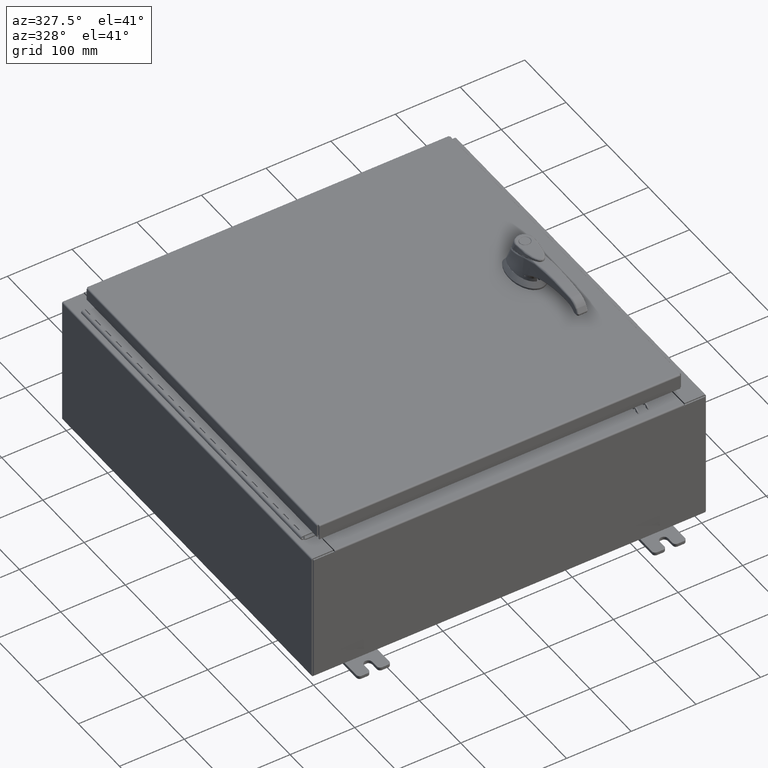
[diagram: clean part render]
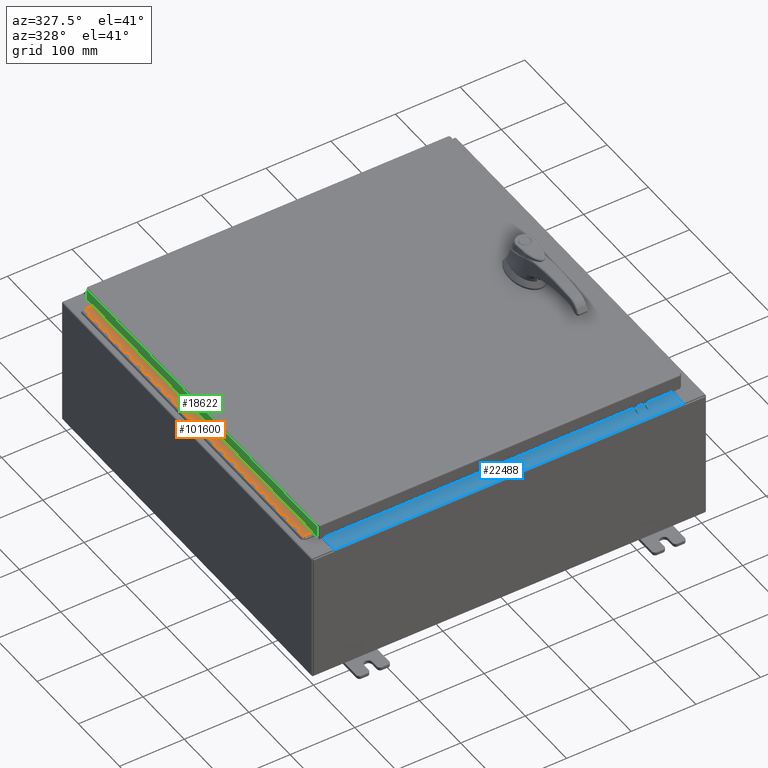
[diagram: same view with three faces highlighted in distinct colors, each labeled with its STEP entity id]
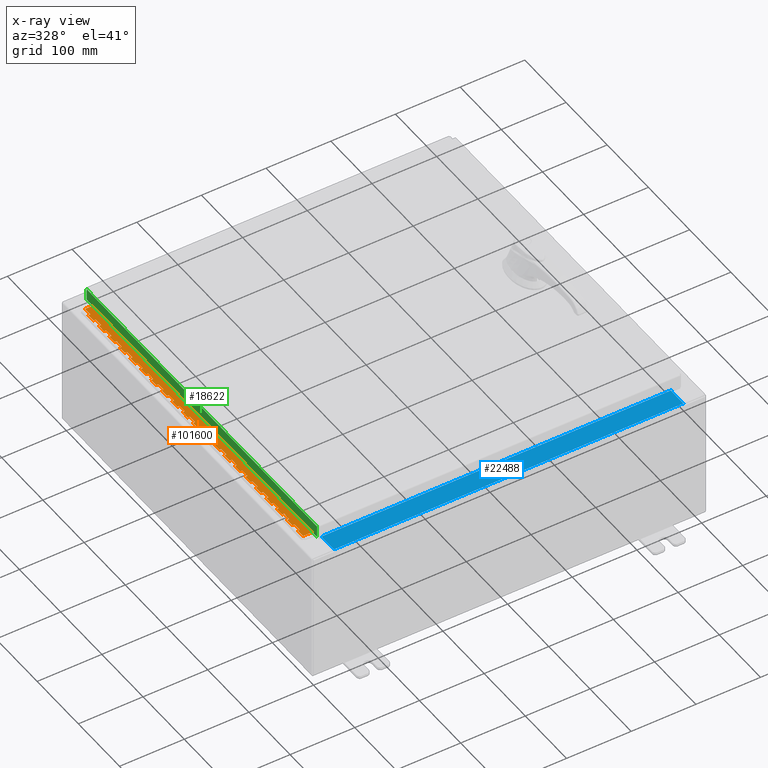
[diagram: x-ray of the same camera — body ghosted, the three highlighted faces saturated]
A machine part, auxiliary view with three faces highlighted in distinct colors.
The next image is the same camera in x-ray (body ghosted, the three faces saturated) — at least one of them is partly hidden behind the body in this view.
Their STEP definitions:

[orange] entity #101600 — the highlighted planar face has unit normal (-0, -0, 1).
#120 = VECTOR ( 'NONE', #27151, 39.37007874015748100 ) ;
#170 = CARTESIAN_POINT ( 'NONE',  ( -0.6869999999999973900, 0.8004999999999995500, -11.50000000000000000 ) ) ;
#180 = DIRECTION ( 'NONE',  ( -3.389037039080723100E-015, -1.000000000000000000, 0.0000000000000000000 ) ) ;
#307 = VERTEX_POINT ( 'NONE', #33217 ) ;
#618 = LINE ( 'NONE', #94288, #111666 ) ;
#1006 = VERTEX_POINT ( 'NONE', #9040 ) ;
#1140 = LINE ( 'NONE', #74490, #91634 ) ;
#1196 = ORIENTED_EDGE ( 'NONE', *, *, #69363, .F. ) ;
#1357 = EDGE_CURVE ( 'NONE', #11441, #54437, #4801, .T. ) ;
#1646 = CARTESIAN_POINT ( 'NONE',  ( -0.6869999999999978300, 0.6754999999999996600, -2.999999999999999600 ) ) ;
#1653 = VERTEX_POINT ( 'NONE', #46923 ) ;
#1743 = CARTESIAN_POINT ( 'NONE',  ( -0.6870000000000022800, -0.6245000000000003900, 0.0000000000000000000 ) ) ;
#1844 = VERTEX_POINT ( 'NONE', #83343 ) ;
#2031 = CARTESIAN_POINT ( 'NONE',  ( -0.6869999999999973900, 0.8004999999999995500, -18.50000000000000000 ) ) ;
#2469 = VERTEX_POINT ( 'NONE', #107846 ) ;
#2493 = CARTESIAN_POINT ( 'NONE',  ( -0.6869999999999978300, 0.6754999999999996600, -3.500000000000000000 ) ) ;
#2861 = CARTESIAN_POINT ( 'NONE',  ( -0.6869999999999982800, 0.5504999999999997700, -0.5000000000000000000 ) ) ;
#3249 = EDGE_CURVE ( 'NONE', #66567, #33838, #85735, .T. ) ;
#3370 = VERTEX_POINT ( 'NONE', #79332 ) ;
#3786 = VERTEX_POINT ( 'NONE', #113231 ) ;
#3861 = VERTEX_POINT ( 'NONE', #28844 ) ;
#3927 = CARTESIAN_POINT ( 'NONE',  ( -0.6869999999999978300, 0.6754999999999996600, -14.49999999999999800 ) ) ;
#4357 = LINE ( 'NONE', #37881, #27726 ) ;
#4422 = EDGE_CURVE ( 'NONE', #97464, #53398, #48510, .T. ) ;
#4689 = EDGE_CURVE ( 'NONE', #82828, #89474, #60870, .T. ) ;
#4801 = LINE ( 'NONE', #109983, #28183 ) ;
#5056 = LINE ( 'NONE', #11542, #75020 ) ;
#5363 = EDGE_CURVE ( 'NONE', #96682, #3861, #40167, .T. ) ;
#5679 = CARTESIAN_POINT ( 'NONE',  ( -0.6869999999999978300, 0.6754999999999996600, -21.00000000000000000 ) ) ;
#5978 = LINE ( 'NONE', #38737, #73198 ) ;
#6099 = VECTOR ( 'NONE', #50265, 39.37007874015748100 ) ;
#6186 = ORIENTED_EDGE ( 'NONE', *, *, #97880, .F. ) ;
#6223 = CARTESIAN_POINT ( 'NONE',  ( -0.6869999999999982800, 0.5504999999999997700, -18.50000000000000000 ) ) ;
#6336 = ORIENTED_EDGE ( 'NONE', *, *, #98086, .F. ) ;
#6368 = VERTEX_POINT ( 'NONE', #13654 ) ;
#6405 = DIRECTION ( 'NONE',  ( 0.0000000000000000000, 0.0000000000000000000, 1.000000000000000000 ) ) ;
#6441 = DIRECTION ( 'NONE',  ( 0.0000000000000000000, -0.0000000000000000000, -1.000000000000000000 ) ) ;
#6771 = CARTESIAN_POINT ( 'NONE',  ( -0.6869999999999982800, 0.5504999999999997700, -19.50000000000000000 ) ) ;
#6994 = CARTESIAN_POINT ( 'NONE',  ( -0.6869999999999982800, 0.5504999999999997700, -15.50000000000000000 ) ) ;
#7305 = VERTEX_POINT ( 'NONE', #79966 ) ;
#7383 = CARTESIAN_POINT ( 'NONE',  ( -0.6869999999999973900, 0.8004999999999995500, -13.50000000000000000 ) ) ;
#7943 = VECTOR ( 'NONE', #8959, 39.37007874015748100 ) ;
#8090 = ORIENTED_EDGE ( 'NONE', *, *, #76887, .F. ) ;
#8199 = ORIENTED_EDGE ( 'NONE', *, *, #33458, .F. ) ;
#8200 = DIRECTION ( 'NONE',  ( 3.389037039080723100E-015, 1.000000000000000000, -0.0000000000000000000 ) ) ;
#8306 = LINE ( 'NONE', #18621, #52196 ) ;
#8850 = LINE ( 'NONE', #100359, #102068 ) ;
#8875 = EDGE_CURVE ( 'NONE', #61348, #82828, #76814, .T. ) ;
#8959 = DIRECTION ( 'NONE',  ( -3.389037039080723100E-015, -1.000000000000000000, 0.0000000000000000000 ) ) ;
#9040 = CARTESIAN_POINT ( 'NONE',  ( -0.6869999999999982800, 0.5504999999999997700, -8.000000000000000000 ) ) ;
#9276 = CARTESIAN_POINT ( 'NONE',  ( -0.6869999999999982800, 0.5504999999999997700, -9.000000000000000000 ) ) ;
#9296 = DIRECTION ( 'NONE',  ( 0.0000000000000000000, -0.0000000000000000000, -1.000000000000000000 ) ) ;
#9481 = VERTEX_POINT ( 'NONE', #19640 ) ;
#9540 = LINE ( 'NONE', #5679, #76691 ) ;
#9758 = CARTESIAN_POINT ( 'NONE',  ( -0.6869999999999982800, 0.5504999999999997700, -1.499999999999999800 ) ) ;
#9911 = VECTOR ( 'NONE', #58208, 39.37007874015748100 ) ;
#9949 = VECTOR ( 'NONE', #49520, 39.37007874015748100 ) ;
#10006 = DIRECTION ( 'NONE',  ( 3.389037039080723100E-015, 1.000000000000000000, -0.0000000000000000000 ) ) ;
#10042 = ORIENTED_EDGE ( 'NONE', *, *, #86358, .T. ) ;
#10224 = LINE ( 'NONE', #20951, #106233 ) ;
#10236 = EDGE_CURVE ( 'NONE', #100849, #17783, #62942, .T. ) ;
#10587 = CARTESIAN_POINT ( 'NONE',  ( -0.6869999999999982800, 0.5504999999999997700, -2.999999999999999600 ) ) ;
#10707 = EDGE_CURVE ( 'NONE', #1844, #95845, #82121, .T. ) ;
#10843 = VECTOR ( 'NONE', #86360, 39.37007874015748100 ) ;
#10896 = CARTESIAN_POINT ( 'NONE',  ( -0.6869999999999978300, 0.6754999999999996600, -13.50000000000000000 ) ) ;
#11197 = VECTOR ( 'NONE', #24562, 39.37007874015748100 ) ;
#11341 = PLANE ( 'NONE',  #105125 ) ;
#11441 = VERTEX_POINT ( 'NONE', #92201 ) ;
#11447 = VECTOR ( 'NONE', #23451, 39.37007874015748100 ) ;
#11492 = ORIENTED_EDGE ( 'NONE', *, *, #15502, .T. ) ;
#11542 = CARTESIAN_POINT ( 'NONE',  ( -0.6869999999999982800, 0.5504999999999997700, -5.500000000000000000 ) ) ;
#11704 = DIRECTION ( 'NONE',  ( 0.0000000000000000000, -0.0000000000000000000, -1.000000000000000000 ) ) ;
#11714 = CARTESIAN_POINT ( 'NONE',  ( -0.6870000000000022800, -0.6245000000000003900, -21.00000000000000000 ) ) ;
#12114 = VECTOR ( 'NONE', #94629, 39.37007874015748100 ) ;
#12589 = VERTEX_POINT ( 'NONE', #40969 ) ;
#12602 = CARTESIAN_POINT ( 'NONE',  ( -0.6869999999999982800, 0.5504999999999997700, -17.50000000000000000 ) ) ;
#12825 = EDGE_CURVE ( 'NONE', #27453, #7305, #18785, .T. ) ;
#12837 = ORIENTED_EDGE ( 'NONE', *, *, #92998, .F. ) ;
#12866 = LINE ( 'NONE', #61961, #36252 ) ;
#12907 = ORIENTED_EDGE ( 'NONE', *, *, #49012, .F. ) ;
#12928 = VERTEX_POINT ( 'NONE', #100175 ) ;
#13199 = EDGE_CURVE ( 'NONE', #33949, #20771, #31067, .T. ) ;
#13393 = LINE ( 'NONE', #70811, #57249 ) ;
#13446 = VECTOR ( 'NONE', #180, 39.37007874015748100 ) ;
#13607 = CARTESIAN_POINT ( 'NONE',  ( -0.6869999999999973900, 0.8004999999999995500, -19.50000000000000000 ) ) ;
#13654 = CARTESIAN_POINT ( 'NONE',  ( -0.6869999999999978300, 0.6754999999999996600, -1.499999999999999800 ) ) ;
#13943 = CARTESIAN_POINT ( 'NONE',  ( -0.6869999999999982800, 0.5504999999999997700, -8.500000000000000000 ) ) ;
#14333 = CARTESIAN_POINT ( 'NONE',  ( -0.6869999999999982800, 0.5504999999999997700, -10.50000000000000000 ) ) ;
#14553 = CARTESIAN_POINT ( 'NONE',  ( -0.6869999999999982800, 0.5504999999999997700, -8.500000000000000000 ) ) ;
#14612 = CARTESIAN_POINT ( 'NONE',  ( -0.6869999999999978300, 0.6754999999999996600, -21.00000000000000000 ) ) ;
#14738 = EDGE_CURVE ( 'NONE', #94481, #64956, #56458, .T. ) ;
#14833 = VECTOR ( 'NONE', #97558, 39.37007874015748100 ) ;
#14866 = VECTOR ( 'NONE', #82044, 39.37007874015748100 ) ;
#14942 = VERTEX_POINT ( 'NONE', #63937 ) ;
#14958 = LINE ( 'NONE', #34514, #102728 ) ;
#15342 = CARTESIAN_POINT ( 'NONE',  ( -0.6869999999999982800, 0.5504999999999997700, -5.000000000000000000 ) ) ;
#15502 = EDGE_CURVE ( 'NONE', #33949, #40504, #111289, .T. ) ;
#15565 = EDGE_CURVE ( 'NONE', #102285, #42895, #41321, .T. ) ;
#15626 = CARTESIAN_POINT ( 'NONE',  ( -0.6869999999999973900, 0.8004999999999995500, -10.50000000000000000 ) ) ;
#15740 = CARTESIAN_POINT ( 'NONE',  ( -0.6869999999999978300, 0.6754999999999996600, -21.00000000000000000 ) ) ;
#15803 = DIRECTION ( 'NONE',  ( -3.389037039080723100E-015, -1.000000000000000000, 0.0000000000000000000 ) ) ;
#16167 = CARTESIAN_POINT ( 'NONE',  ( -0.6869999999999982800, 0.5504999999999997700, -20.50000000000000400 ) ) ;
#16302 = VECTOR ( 'NONE', #34987, 39.37007874015748100 ) ;
#16376 = CARTESIAN_POINT ( 'NONE',  ( -0.6869999999999978300, 0.6754999999999996600, -21.00000000000000000 ) ) ;
#16427 = VECTOR ( 'NONE', #63329, 39.37007874015748100 ) ;
#16587 = DIRECTION ( 'NONE',  ( 0.0000000000000000000, 0.0000000000000000000, 1.000000000000000000 ) ) ;
#17042 = CARTESIAN_POINT ( 'NONE',  ( -0.6869999999999973900, 0.8004999999999995500, -2.000000000000000000 ) ) ;
#17093 = ORIENTED_EDGE ( 'NONE', *, *, #18775, .F. ) ;
#17450 = VECTOR ( 'NONE', #66267, 39.37007874015748100 ) ;
#17696 = CARTESIAN_POINT ( 'NONE',  ( -0.6869999999999973900, 0.8004999999999995500, -2.500000000000000000 ) ) ;
#17783 = VERTEX_POINT ( 'NONE', #80480 ) ;
#17852 = DIRECTION ( 'NONE',  ( 3.389037039080723100E-015, 1.000000000000000000, -0.0000000000000000000 ) ) ;
#17978 = ORIENTED_EDGE ( 'NONE', *, *, #80175, .F. ) ;
#18338 = DIRECTION ( 'NONE',  ( 3.389037039080723100E-015, 1.000000000000000000, -0.0000000000000000000 ) ) ;
#18444 = EDGE_CURVE ( 'NONE', #20771, #44139, #68640, .T. ) ;
#18583 = CARTESIAN_POINT ( 'NONE',  ( -0.6869999999999982800, 0.5504999999999997700, -16.50000000000000000 ) ) ;
#18621 = CARTESIAN_POINT ( 'NONE',  ( -0.6869999999999973900, 0.8004999999999995500, -9.500000000000000000 ) ) ;
#18764 = VERTEX_POINT ( 'NONE', #61426 ) ;
#18775 = EDGE_CURVE ( 'NONE', #93828, #9481, #67183, .T. ) ;
#18785 = LINE ( 'NONE', #17042, #88757 ) ;
#19153 = CARTESIAN_POINT ( 'NONE',  ( -0.6869999999999973900, 0.8004999999999995500, -16.00000000000000000 ) ) ;
#19411 = CARTESIAN_POINT ( 'NONE',  ( -0.6869999999999982800, 0.5504999999999997700, -3.500000000000000000 ) ) ;
#19541 = VECTOR ( 'NONE', #46421, 39.37007874015748100 ) ;
#19618 = ORIENTED_EDGE ( 'NONE', *, *, #22571, .T. ) ;
#19640 = CARTESIAN_POINT ( 'NONE',  ( -0.6869999999999982800, 0.5504999999999997700, -12.49999999999999800 ) ) ;
#19841 = DIRECTION ( 'NONE',  ( 0.0000000000000000000, 0.0000000000000000000, 1.000000000000000000 ) ) ;
#19851 = LINE ( 'NONE', #21198, #22549 ) ;
#19854 = VECTOR ( 'NONE', #9296, 39.37007874015748100 ) ;
#20134 = CARTESIAN_POINT ( 'NONE',  ( -0.6869999999999982800, 0.5504999999999997700, -9.500000000000000000 ) ) ;
#20167 = VECTOR ( 'NONE', #72565, 39.37007874015748100 ) ;
#20291 = ORIENTED_EDGE ( 'NONE', *, *, #99053, .F. ) ;
#20683 = CARTESIAN_POINT ( 'NONE',  ( -0.6869999999999973900, 0.8004999999999995500, -6.499999999999999100 ) ) ;
#20771 = VERTEX_POINT ( 'NONE', #19411 ) ;
#20819 = EDGE_CURVE ( 'NONE', #45237, #82488, #102603, .T. ) ;
#20951 = CARTESIAN_POINT ( 'NONE',  ( -0.6869999999999973900, 0.8004999999999995500, -5.000000000000000000 ) ) ;
#20984 = EDGE_CURVE ( 'NONE', #6368, #102851, #1140, .T. ) ;
#21198 = CARTESIAN_POINT ( 'NONE',  ( -0.6870000000000022800, -0.6245000000000003900, -21.00000000000000000 ) ) ;
#21437 = EDGE_CURVE ( 'NONE', #56977, #3370, #28502, .T. ) ;
#21880 = LINE ( 'NONE', #2031, #16427 ) ;
#22114 = EDGE_CURVE ( 'NONE', #83828, #96064, #39386, .T. ) ;
#22549 = VECTOR ( 'NONE', #82578, 39.37007874015748100 ) ;
#22571 = EDGE_CURVE ( 'NONE', #58668, #68123, #32490, .T. ) ;
#22663 = CARTESIAN_POINT ( 'NONE',  ( -0.6869999999999978300, 0.6754999999999996600, -21.00000000000000000 ) ) ;
#22682 = CARTESIAN_POINT ( 'NONE',  ( -0.6869999999999982800, 0.5504999999999997700, -21.00000000000000000 ) ) ;
#22732 = LINE ( 'NONE', #113489, #110530 ) ;
#23177 = VERTEX_POINT ( 'NONE', #50981 ) ;
#23209 = VERTEX_POINT ( 'NONE', #42906 ) ;
#23451 = DIRECTION ( 'NONE',  ( 0.0000000000000000000, 0.0000000000000000000, 1.000000000000000000 ) ) ;
#23458 = CARTESIAN_POINT ( 'NONE',  ( -0.6869999999999982800, 0.5504999999999997700, -14.00000000000000000 ) ) ;
#23758 = ORIENTED_EDGE ( 'NONE', *, *, #74029, .F. ) ;
#23807 = CARTESIAN_POINT ( 'NONE',  ( -0.6869999999999973900, 0.8004999999999995500, -4.500000000000000000 ) ) ;
#23872 = CARTESIAN_POINT ( 'NONE',  ( -0.6869999999999982800, 0.5504999999999997700, -13.50000000000000000 ) ) ;
#24418 = LINE ( 'NONE', #73544, #112216 ) ;
#24523 = VERTEX_POINT ( 'NONE', #75845 ) ;
#24562 = DIRECTION ( 'NONE',  ( 0.0000000000000000000, 0.0000000000000000000, 1.000000000000000000 ) ) ;
#24813 = CARTESIAN_POINT ( 'NONE',  ( -0.6869999999999982800, 0.5504999999999997700, -1.499999999999999800 ) ) ;
#25180 = DIRECTION ( 'NONE',  ( 0.0000000000000000000, 0.0000000000000000000, 1.000000000000000000 ) ) ;
#25200 = ORIENTED_EDGE ( 'NONE', *, *, #62229, .F. ) ;
#25301 = EDGE_CURVE ( 'NONE', #9481, #83828, #107564, .T. ) ;
#25539 = CARTESIAN_POINT ( 'NONE',  ( -0.6869999999999973900, 0.8004999999999995500, -1.000000000000000000 ) ) ;
#25583 = LINE ( 'NONE', #1743, #98282 ) ;
#26101 = VERTEX_POINT ( 'NONE', #35861 ) ;
#26286 = VECTOR ( 'NONE', #25180, 39.37007874015748100 ) ;
#26548 = EDGE_CURVE ( 'NONE', #33838, #40504, #88299, .T. ) ;
#27100 = VECTOR ( 'NONE', #68500, 39.37007874015748100 ) ;
#27151 = DIRECTION ( 'NONE',  ( 0.0000000000000000000, 0.0000000000000000000, 1.000000000000000000 ) ) ;
#27330 = ORIENTED_EDGE ( 'NONE', *, *, #21437, .F. ) ;
#27348 = CARTESIAN_POINT ( 'NONE',  ( -0.6869999999999982800, 0.5504999999999997700, -2.000000000000000000 ) ) ;
#27375 = DIRECTION ( 'NONE',  ( -3.389037039080723100E-015, -1.000000000000000000, 0.0000000000000000000 ) ) ;
#27431 = DIRECTION ( 'NONE',  ( -3.389037039080723100E-015, -1.000000000000000000, 0.0000000000000000000 ) ) ;
#27453 = VERTEX_POINT ( 'NONE', #27348 ) ;
#27496 = LINE ( 'NONE', #22663, #48027 ) ;
#27532 = VERTEX_POINT ( 'NONE', #28086 ) ;
#27536 = DIRECTION ( 'NONE',  ( 3.389037039080723100E-015, 1.000000000000000000, -0.0000000000000000000 ) ) ;
#27726 = VECTOR ( 'NONE', #99168, 39.37007874015748100 ) ;
#28086 = CARTESIAN_POINT ( 'NONE',  ( -0.6869999999999978300, 0.6754999999999996600, -16.00000000000000000 ) ) ;
#28183 = VECTOR ( 'NONE', #80058, 39.37007874015748100 ) ;
#28502 = LINE ( 'NONE', #170, #7943 ) ;
#28656 = CARTESIAN_POINT ( 'NONE',  ( -0.6869999999999978300, 0.6754999999999996600, -21.00000000000000000 ) ) ;
#28762 = ORIENTED_EDGE ( 'NONE', *, *, #36498, .F. ) ;
#28844 = CARTESIAN_POINT ( 'NONE',  ( -0.6869999999999978300, 0.6754999999999996600, -11.00000000000000000 ) ) ;
#28864 = ORIENTED_EDGE ( 'NONE', *, *, #22114, .F. ) ;
#29434 = LINE ( 'NONE', #25539, #78850 ) ;
#29577 = EDGE_CURVE ( 'NONE', #58668, #45237, #92867, .T. ) ;
#29898 = DIRECTION ( 'NONE',  ( -3.389037039080723100E-015, -1.000000000000000000, 0.0000000000000000000 ) ) ;
#30059 = VERTEX_POINT ( 'NONE', #105831 ) ;
#30228 = DIRECTION ( 'NONE',  ( 0.0000000000000000000, 0.0000000000000000000, 1.000000000000000000 ) ) ;
#30792 = CARTESIAN_POINT ( 'NONE',  ( -0.6869999999999982800, 0.5504999999999997700, -2.500000000000000000 ) ) ;
#30939 = ORIENTED_EDGE ( 'NONE', *, *, #13199, .F. ) ;
#31067 = LINE ( 'NONE', #68315, #48869 ) ;
#31295 = VECTOR ( 'NONE', #101866, 39.37007874015748100 ) ;
#31765 = LINE ( 'NONE', #15740, #11197 ) ;
#31859 = VERTEX_POINT ( 'NONE', #60538 ) ;
#32433 = CARTESIAN_POINT ( 'NONE',  ( -0.6869999999999982800, 0.5504999999999997700, -9.500000000000000000 ) ) ;
#32469 = EDGE_CURVE ( 'NONE', #82488, #102851, #29434, .T. ) ;
#32490 = LINE ( 'NONE', #33659, #105172 ) ;
#32526 = ORIENTED_EDGE ( 'NONE', *, *, #70454, .F. ) ;
#32543 = ORIENTED_EDGE ( 'NONE', *, *, #57870, .F. ) ;
#33217 = CARTESIAN_POINT ( 'NONE',  ( -0.6869999999999998300, 0.07549999999999991400, 0.0000000000000000000 ) ) ;
#33458 = EDGE_CURVE ( 'NONE', #40155, #24523, #51152, .T. ) ;
#33493 = LINE ( 'NONE', #91551, #36240 ) ;
#33659 = CARTESIAN_POINT ( 'NONE',  ( -0.6869999999999978300, 0.6754999999999996600, -21.00000000000000000 ) ) ;
#33838 = VERTEX_POINT ( 'NONE', #10587 ) ;
#33949 = VERTEX_POINT ( 'NONE', #2493 ) ;
#34439 = EDGE_CURVE ( 'NONE', #30059, #112996, #4357, .T. ) ;
#34514 = CARTESIAN_POINT ( 'NONE',  ( -0.6869999999999973900, 0.8004999999999995500, -20.50000000000000400 ) ) ;
#34740 = VECTOR ( 'NONE', #40764, 39.37007874015748100 ) ;
#34987 = DIRECTION ( 'NONE',  ( 0.0000000000000000000, -0.0000000000000000000, -1.000000000000000000 ) ) ;
#35209 = ORIENTED_EDGE ( 'NONE', *, *, #48298, .F. ) ;
#35274 = CARTESIAN_POINT ( 'NONE',  ( -0.6869999999999982800, 0.5504999999999997700, -2.500000000000000000 ) ) ;
#35303 = FACE_OUTER_BOUND ( 'NONE', #51970, .T. ) ;
#35400 = ORIENTED_EDGE ( 'NONE', *, *, #95560, .T. ) ;
#35493 = VECTOR ( 'NONE', #11704, 39.37007874015748100 ) ;
#35762 = CARTESIAN_POINT ( 'NONE',  ( -0.6869999999999982800, 0.5504999999999997700, -16.50000000000000000 ) ) ;
#35861 = CARTESIAN_POINT ( 'NONE',  ( -0.6869999999999982800, 0.5504999999999997700, -17.00000000000000000 ) ) ;
#36134 = VERTEX_POINT ( 'NONE', #51758 ) ;
#36136 = VERTEX_POINT ( 'NONE', #86675 ) ;
#36176 = CARTESIAN_POINT ( 'NONE',  ( -0.6869999999999978300, 0.6754999999999996600, -10.00000000000000000 ) ) ;
#36240 = VECTOR ( 'NONE', #30228, 39.37007874015748100 ) ;
#36252 = VECTOR ( 'NONE', #79643, 39.37007874015748100 ) ;
#36353 = LINE ( 'NONE', #111457, #56819 ) ;
#36436 = VERTEX_POINT ( 'NONE', #54846 ) ;
#36441 = ORIENTED_EDGE ( 'NONE', *, *, #53855, .F. ) ;
#36498 = EDGE_CURVE ( 'NONE', #45158, #67743, #89262, .T. ) ;
#36555 = ORIENTED_EDGE ( 'NONE', *, *, #99181, .F. ) ;
#36556 = CARTESIAN_POINT ( 'NONE',  ( -0.6869999999999978300, 0.6754999999999996600, -12.49999999999999800 ) ) ;
#37020 = VECTOR ( 'NONE', #6441, 39.37007874015748100 ) ;
#37038 = CARTESIAN_POINT ( 'NONE',  ( -0.6869999999999982800, 0.5504999999999997700, -3.500000000000000000 ) ) ;
#37532 = LINE ( 'NONE', #14612, #11447 ) ;
#37881 = CARTESIAN_POINT ( 'NONE',  ( -0.6869999999999982800, 0.5504999999999997700, -14.49999999999999800 ) ) ;
#37903 = DIRECTION ( 'NONE',  ( 3.389037039080723100E-015, 1.000000000000000000, -0.0000000000000000000 ) ) ;
#37991 = LINE ( 'NONE', #58542, #61305 ) ;
#38302 = ORIENTED_EDGE ( 'NONE', *, *, #68829, .F. ) ;
#38393 = ORIENTED_EDGE ( 'NONE', *, *, #51066, .T. ) ;
#38660 = EDGE_CURVE ( 'NONE', #112453, #36134, #21880, .T. ) ;
#38737 = CARTESIAN_POINT ( 'NONE',  ( -0.6869999999999973900, 0.8004999999999995500, -4.000000000000000000 ) ) ;
#38757 = VECTOR ( 'NONE', #74933, 39.37007874015748100 ) ;
#38818 = LINE ( 'NONE', #48295, #85476 ) ;
#39343 = ORIENTED_EDGE ( 'NONE', *, *, #55986, .T. ) ;
#39369 = ORIENTED_EDGE ( 'NONE', *, *, #58008, .F. ) ;
#39386 = LINE ( 'NONE', #93557, #57153 ) ;
#39522 = LINE ( 'NONE', #7383, #42259 ) ;
#39612 = LINE ( 'NONE', #78660, #16302 ) ;
#39659 = DIRECTION ( 'NONE',  ( 0.0000000000000000000, 0.0000000000000000000, 1.000000000000000000 ) ) ;
#39702 = EDGE_CURVE ( 'NONE', #62582, #104275, #101329, .T. ) ;
#39775 = EDGE_CURVE ( 'NONE', #95845, #51859, #60203, .T. ) ;
#40155 = VERTEX_POINT ( 'NONE', #98032 ) ;
#40167 = LINE ( 'NONE', #87190, #84069 ) ;
#40504 = VERTEX_POINT ( 'NONE', #1646 ) ;
#40764 = DIRECTION ( 'NONE',  ( 0.0000000000000000000, -0.0000000000000000000, -1.000000000000000000 ) ) ;
#40944 = ORIENTED_EDGE ( 'NONE', *, *, #61036, .F. ) ;
#40969 = CARTESIAN_POINT ( 'NONE',  ( -0.6869999999999978300, 0.6754999999999996600, -7.499999999999999100 ) ) ;
#41321 = LINE ( 'NONE', #16376, #61904 ) ;
#41500 = DIRECTION ( 'NONE',  ( -3.389037039080723100E-015, -1.000000000000000000, 0.0000000000000000000 ) ) ;
#41573 = VECTOR ( 'NONE', #27375, 39.37007874015748100 ) ;
#41742 = DIRECTION ( 'NONE',  ( 0.0000000000000000000, 0.0000000000000000000, 1.000000000000000000 ) ) ;
#42237 = CARTESIAN_POINT ( 'NONE',  ( -0.6869999999999973900, 0.8004999999999995500, -10.00000000000000000 ) ) ;
#42259 = VECTOR ( 'NONE', #59881, 39.37007874015748100 ) ;
#42598 = DIRECTION ( 'NONE',  ( 3.389037039080723100E-015, 1.000000000000000000, -0.0000000000000000000 ) ) ;
#42883 = CARTESIAN_POINT ( 'NONE',  ( -0.6869999999999982800, 0.5504999999999997700, -7.000000000000000000 ) ) ;
#42895 = VERTEX_POINT ( 'NONE', #89740 ) ;
#42906 = CARTESIAN_POINT ( 'NONE',  ( -0.6869999999999982800, 0.5504999999999997700, -4.500000000000000000 ) ) ;
#42911 = LINE ( 'NONE', #6223, #34740 ) ;
#43387 = ORIENTED_EDGE ( 'NONE', *, *, #34439, .F. ) ;
#43393 = VECTOR ( 'NONE', #46934, 39.37007874015748100 ) ;
#43906 = CARTESIAN_POINT ( 'NONE',  ( -0.6869999999999973900, 0.8004999999999995500, -11.99999999999999800 ) ) ;
#43954 = VECTOR ( 'NONE', #108901, 39.37007874015748100 ) ;
#44139 = VERTEX_POINT ( 'NONE', #92825 ) ;
#44245 = ORIENTED_EDGE ( 'NONE', *, *, #81758, .F. ) ;
#44438 = ORIENTED_EDGE ( 'NONE', *, *, #26548, .F. ) ;
#44532 = EDGE_CURVE ( 'NONE', #3370, #36436, #89831, .T. ) ;
#44550 = CARTESIAN_POINT ( 'NONE',  ( -0.6869999999999982800, 0.5504999999999997700, -11.50000000000000000 ) ) ;
#44768 = ORIENTED_EDGE ( 'NONE', *, *, #90817, .F. ) ;
#44864 = ORIENTED_EDGE ( 'NONE', *, *, #61566, .F. ) ;
#44951 = ORIENTED_EDGE ( 'NONE', *, *, #15565, .T. ) ;
#45158 = VERTEX_POINT ( 'NONE', #32433 ) ;
#45237 = VERTEX_POINT ( 'NONE', #59580 ) ;
#45500 = VECTOR ( 'NONE', #51586, 39.37007874015748100 ) ;
#46276 = VERTEX_POINT ( 'NONE', #23458 ) ;
#46421 = DIRECTION ( 'NONE',  ( 3.389037039080723100E-015, 1.000000000000000000, -0.0000000000000000000 ) ) ;
#46591 = CARTESIAN_POINT ( 'NONE',  ( -0.6869999999999973900, 0.8004999999999995500, -17.50000000000000000 ) ) ;
#46655 = CARTESIAN_POINT ( 'NONE',  ( -0.6869999999999978300, 0.6754999999999996600, 0.0000000000000000000 ) ) ;
#46889 = VECTOR ( 'NONE', #66448, 39.37007874015748100 ) ;
#46923 = CARTESIAN_POINT ( 'NONE',  ( -0.6869999999999978300, 0.6754999999999996600, -17.99999999999999600 ) ) ;
#46934 = DIRECTION ( 'NONE',  ( 3.389037039080723100E-015, 1.000000000000000000, -0.0000000000000000000 ) ) ;
#46964 = DIRECTION ( 'NONE',  ( 3.369016658928398200E-015, 1.000000000000000000, 0.0000000000000000000 ) ) ;
#47721 = CARTESIAN_POINT ( 'NONE',  ( -0.6869999999999978300, 0.6754999999999996600, -8.000000000000000000 ) ) ;
#47848 = LINE ( 'NONE', #28656, #89055 ) ;
#48027 = VECTOR ( 'NONE', #84027, 39.37007874015748100 ) ;
#48135 = EDGE_CURVE ( 'NONE', #89070, #100849, #5056, .T. ) ;
#48295 = CARTESIAN_POINT ( 'NONE',  ( -0.6869999999999978300, 0.6754999999999996600, -21.00000000000000000 ) ) ;
#48298 = EDGE_CURVE ( 'NONE', #89735, #30059, #87450, .T. ) ;
#48510 = LINE ( 'NONE', #105833, #71835 ) ;
#48588 = ORIENTED_EDGE ( 'NONE', *, *, #1357, .T. ) ;
#48869 = VECTOR ( 'NONE', #15803, 39.37007874015748100 ) ;
#49012 = EDGE_CURVE ( 'NONE', #307, #68123, #25583, .T. ) ;
#49095 = EDGE_CURVE ( 'NONE', #89474, #1653, #63916, .T. ) ;
#49373 = CARTESIAN_POINT ( 'NONE',  ( -0.6869999999999978300, 0.6754999999999996600, -20.00000000000000000 ) ) ;
#49513 = VECTOR ( 'NONE', #42598, 39.37007874015748100 ) ;
#49520 = DIRECTION ( 'NONE',  ( 0.0000000000000000000, 0.0000000000000000000, 1.000000000000000000 ) ) ;
#49631 = LINE ( 'NONE', #13943, #46889 ) ;
#50265 = DIRECTION ( 'NONE',  ( -3.389037039080723100E-015, -1.000000000000000000, 0.0000000000000000000 ) ) ;
#50442 = ORIENTED_EDGE ( 'NONE', *, *, #104802, .T. ) ;
#50622 = VECTOR ( 'NONE', #27536, 39.37007874015748100 ) ;
#50884 = CARTESIAN_POINT ( 'NONE',  ( -0.6869999999999982800, 0.5504999999999997700, -12.99999999999999800 ) ) ;
#50885 = CARTESIAN_POINT ( 'NONE',  ( -0.6869999999999982800, 0.5504999999999997700, -6.499999999999999100 ) ) ;
#50981 = CARTESIAN_POINT ( 'NONE',  ( -0.6869999999999978300, 0.6754999999999996600, -5.000000000000000000 ) ) ;
#51066 = EDGE_CURVE ( 'NONE', #61384, #104275, #19851, .T. ) ;
#51152 = LINE ( 'NONE', #6771, #95054 ) ;
#51184 = DIRECTION ( 'NONE',  ( 3.389037039080723100E-015, 1.000000000000000000, -0.0000000000000000000 ) ) ;
#51361 = ORIENTED_EDGE ( 'NONE', *, *, #81616, .F. ) ;
#51586 = DIRECTION ( 'NONE',  ( 0.0000000000000000000, 0.0000000000000000000, 1.000000000000000000 ) ) ;
#51758 = CARTESIAN_POINT ( 'NONE',  ( -0.6869999999999982800, 0.5504999999999997700, -18.50000000000000000 ) ) ;
#51859 = VERTEX_POINT ( 'NONE', #42883 ) ;
#51970 = EDGE_LOOP ( 'NONE', ( #92080, #38393, #108641, #20291, #39343, #44245, #8199, #75664, #50442, #8090, #53384, #69304, #77646, #92689, #64315, #70192, #98512, #44768, #64654, #100625, #55017, #32543, #98484, #55945, #48588, #36441, #43387, #35209, #90663, #36555, #91268, #17978, #92707, #28864, #53008, #17093, #35400, #25200, #80223, #27330, #54413, #67182, #39369, #1196, #87849, #6336, #28762, #6186, #99359, #83417, #92281, #12837, #78733, #77624, #38302, #52786, #88884, #90451, #56735, #72491, #70585, #103644, #103874, #23758, #10042, #40944, #77515, #87623, #44951, #44864, #112451, #30939, #11492, #44438, #86315, #110848, #62063, #88816, #32526, #51361, #64095, #109887, #65246, #65660, #19618, #12907 ) ) ;
#51988 = VECTOR ( 'NONE', #95537, 39.37007874015748100 ) ;
#52130 = CARTESIAN_POINT ( 'NONE',  ( -0.6869999999999982800, 0.5504999999999997700, -7.499999999999999100 ) ) ;
#52163 = DIRECTION ( 'NONE',  ( -3.389037039080723100E-015, -1.000000000000000000, 0.0000000000000000000 ) ) ;
#52196 = VECTOR ( 'NONE', #27431, 39.37007874015748100 ) ;
#52315 = LINE ( 'NONE', #103933, #49513 ) ;
#52360 = CARTESIAN_POINT ( 'NONE',  ( -0.6869999999999978300, 0.6754999999999996600, -17.50000000000000000 ) ) ;
#52786 = ORIENTED_EDGE ( 'NONE', *, *, #71113, .F. ) ;
#52803 = LINE ( 'NONE', #64777, #99404 ) ;
#53008 = ORIENTED_EDGE ( 'NONE', *, *, #25301, .F. ) ;
#53130 = DIRECTION ( 'NONE',  ( 0.0000000000000000000, 0.0000000000000000000, 1.000000000000000000 ) ) ;
#53331 = VECTOR ( 'NONE', #107995, 39.37007874015748100 ) ;
#53332 = DIRECTION ( 'NONE',  ( 0.0000000000000000000, 0.0000000000000000000, 1.000000000000000000 ) ) ;
#53384 = ORIENTED_EDGE ( 'NONE', *, *, #96913, .F. ) ;
#53396 = LINE ( 'NONE', #106090, #50622 ) ;
#53398 = VERTEX_POINT ( 'NONE', #85607 ) ;
#53855 = EDGE_CURVE ( 'NONE', #112996, #54437, #89524, .T. ) ;
#54383 = DIRECTION ( 'NONE',  ( 3.389037039080723100E-015, 1.000000000000000000, -0.0000000000000000000 ) ) ;
#54413 = ORIENTED_EDGE ( 'NONE', *, *, #109923, .T. ) ;
#54437 = VERTEX_POINT ( 'NONE', #72742 ) ;
#54704 = DIRECTION ( 'NONE',  ( 0.0000000000000000000, 0.0000000000000000000, 1.000000000000000000 ) ) ;
#54846 = CARTESIAN_POINT ( 'NONE',  ( -0.6869999999999982800, 0.5504999999999997700, -11.99999999999999800 ) ) ;
#55017 = ORIENTED_EDGE ( 'NONE', *, *, #84743, .T. ) ;
#55399 = VERTEX_POINT ( 'NONE', #86762 ) ;
#55577 = DIRECTION ( 'NONE',  ( 3.389037039080723100E-015, 1.000000000000000000, -0.0000000000000000000 ) ) ;
#55945 = ORIENTED_EDGE ( 'NONE', *, *, #73318, .F. ) ;
#55986 = EDGE_CURVE ( 'NONE', #14942, #111507, #93317, .T. ) ;
#55999 = LINE ( 'NONE', #90430, #53331 ) ;
#56411 = LINE ( 'NONE', #97519, #100339 ) ;
#56458 = LINE ( 'NONE', #110759, #9911 ) ;
#56622 = DIRECTION ( 'NONE',  ( 0.0000000000000000000, -0.0000000000000000000, -1.000000000000000000 ) ) ;
#56735 = ORIENTED_EDGE ( 'NONE', *, *, #39775, .F. ) ;
#56819 = VECTOR ( 'NONE', #6405, 39.37007874015748100 ) ;
#56977 = VERTEX_POINT ( 'NONE', #78703 ) ;
#57077 = CARTESIAN_POINT ( 'NONE',  ( -0.6869999999999982800, 0.5504999999999997700, -20.50000000000000400 ) ) ;
#57153 = VECTOR ( 'NONE', #102354, 39.37007874015748100 ) ;
#57249 = VECTOR ( 'NONE', #18338, 39.37007874015748100 ) ;
#57447 = CARTESIAN_POINT ( 'NONE',  ( -0.6869999999999973900, 0.8004999999999995500, -14.49999999999999800 ) ) ;
#57491 = LINE ( 'NONE', #76221, #37020 ) ;
#57870 = EDGE_CURVE ( 'NONE', #2469, #27532, #61557, .T. ) ;
#58008 = EDGE_CURVE ( 'NONE', #71911, #96682, #55999, .T. ) ;
#58047 = VECTOR ( 'NONE', #64724, 39.37007874015748100 ) ;
#58208 = DIRECTION ( 'NONE',  ( 0.0000000000000000000, 0.0000000000000000000, 1.000000000000000000 ) ) ;
#58542 = CARTESIAN_POINT ( 'NONE',  ( -0.6869999999999973900, 0.8004999999999995500, -7.499999999999999100 ) ) ;
#58668 = VERTEX_POINT ( 'NONE', #113197 ) ;
#58712 = LINE ( 'NONE', #15626, #12114 ) ;
#59580 = CARTESIAN_POINT ( 'NONE',  ( -0.6869999999999982800, 0.5504999999999997700, -0.5000000000000000000 ) ) ;
#59857 = VERTEX_POINT ( 'NONE', #98054 ) ;
#59881 = DIRECTION ( 'NONE',  ( -3.389037039080723100E-015, -1.000000000000000000, 0.0000000000000000000 ) ) ;
#60049 = CARTESIAN_POINT ( 'NONE',  ( -0.6869999999999978300, 0.6754999999999996600, -21.00000000000000000 ) ) ;
#60203 = LINE ( 'NONE', #86750, #51988 ) ;
#60538 = CARTESIAN_POINT ( 'NONE',  ( -0.6869999999999978300, 0.6754999999999996600, -17.00000000000000000 ) ) ;
#60585 = EDGE_CURVE ( 'NONE', #86548, #53398, #52803, .T. ) ;
#60638 = CARTESIAN_POINT ( 'NONE',  ( -0.6869999999999978300, 0.6754999999999996600, -16.50000000000000000 ) ) ;
#60870 = LINE ( 'NONE', #12602, #58047 ) ;
#60966 = VECTOR ( 'NONE', #90224, 39.37007874015748100 ) ;
#61036 = EDGE_CURVE ( 'NONE', #83243, #23177, #10224, .T. ) ;
#61146 = CARTESIAN_POINT ( 'NONE',  ( -0.6869999999999998300, 0.07549999999999991400, -21.00000000000000000 ) ) ;
#61305 = VECTOR ( 'NONE', #76195, 39.37007874015748100 ) ;
#61348 = VERTEX_POINT ( 'NONE', #52360 ) ;
#61384 = VERTEX_POINT ( 'NONE', #61146 ) ;
#61426 = CARTESIAN_POINT ( 'NONE',  ( -0.6869999999999978300, 0.6754999999999996600, -2.500000000000000000 ) ) ;
#61557 = LINE ( 'NONE', #19153, #108150 ) ;
#61566 = EDGE_CURVE ( 'NONE', #44139, #42895, #5978, .T. ) ;
#61904 = VECTOR ( 'NONE', #77694, 39.37007874015748100 ) ;
#61961 = CARTESIAN_POINT ( 'NONE',  ( -0.6869999999999973900, 0.8004999999999995500, -15.50000000000000000 ) ) ;
#62063 = ORIENTED_EDGE ( 'NONE', *, *, #79080, .T. ) ;
#62229 = EDGE_CURVE ( 'NONE', #36436, #12928, #101912, .T. ) ;
#62574 = EDGE_CURVE ( 'NONE', #109567, #96064, #38818, .T. ) ;
#62582 = VERTEX_POINT ( 'NONE', #57077 ) ;
#62942 = LINE ( 'NONE', #99198, #89083 ) ;
#63329 = DIRECTION ( 'NONE',  ( -3.389037039080723100E-015, -1.000000000000000000, 0.0000000000000000000 ) ) ;
#63387 = DIRECTION ( 'NONE',  ( 0.0000000000000000000, -0.0000000000000000000, -1.000000000000000000 ) ) ;
#63916 = LINE ( 'NONE', #99442, #43393 ) ;
#63937 = CARTESIAN_POINT ( 'NONE',  ( -0.6869999999999978300, 0.6754999999999996600, -20.50000000000000400 ) ) ;
#64020 = DIRECTION ( 'NONE',  ( 0.0000000000000000000, -0.0000000000000000000, -1.000000000000000000 ) ) ;
#64095 = ORIENTED_EDGE ( 'NONE', *, *, #20984, .T. ) ;
#64181 = DIRECTION ( 'NONE',  ( 0.0000000000000000000, -0.0000000000000000000, -1.000000000000000000 ) ) ;
#64315 = ORIENTED_EDGE ( 'NONE', *, *, #4689, .F. ) ;
#64654 = ORIENTED_EDGE ( 'NONE', *, *, #99848, .F. ) ;
#64724 = DIRECTION ( 'NONE',  ( 0.0000000000000000000, -0.0000000000000000000, -1.000000000000000000 ) ) ;
#64777 = CARTESIAN_POINT ( 'NONE',  ( -0.6869999999999973900, 0.8004999999999995500, -9.000000000000000000 ) ) ;
#64869 = VECTOR ( 'NONE', #10006, 39.37007874015748100 ) ;
#64956 = VERTEX_POINT ( 'NONE', #47721 ) ;
#65246 = ORIENTED_EDGE ( 'NONE', *, *, #20819, .F. ) ;
#65660 = ORIENTED_EDGE ( 'NONE', *, *, #29577, .F. ) ;
#66267 = DIRECTION ( 'NONE',  ( -3.389037039080723100E-015, -1.000000000000000000, 0.0000000000000000000 ) ) ;
#66448 = DIRECTION ( 'NONE',  ( 0.0000000000000000000, -0.0000000000000000000, -1.000000000000000000 ) ) ;
#66567 = VERTEX_POINT ( 'NONE', #30792 ) ;
#67182 = ORIENTED_EDGE ( 'NONE', *, *, #5363, .F. ) ;
#67183 = LINE ( 'NONE', #87936, #90560 ) ;
#67620 = EDGE_CURVE ( 'NONE', #18764, #66567, #112444, .T. ) ;
#67743 = VERTEX_POINT ( 'NONE', #75454 ) ;
#67791 = EDGE_CURVE ( 'NONE', #96966, #46276, #57491, .T. ) ;
#68123 = VERTEX_POINT ( 'NONE', #46655 ) ;
#68315 = CARTESIAN_POINT ( 'NONE',  ( -0.6869999999999973900, 0.8004999999999995500, -3.500000000000000000 ) ) ;
#68500 = DIRECTION ( 'NONE',  ( 0.0000000000000000000, -0.0000000000000000000, -1.000000000000000000 ) ) ;
#68640 = LINE ( 'NONE', #37038, #109765 ) ;
#68829 = EDGE_CURVE ( 'NONE', #110397, #1006, #39612, .T. ) ;
#69304 = ORIENTED_EDGE ( 'NONE', *, *, #38660, .F. ) ;
#69363 = EDGE_CURVE ( 'NONE', #85978, #71911, #58712, .T. ) ;
#69526 = CARTESIAN_POINT ( 'NONE',  ( -0.6869999999999982800, 0.5504999999999997700, -1.000000000000000000 ) ) ;
#69547 = EDGE_CURVE ( 'NONE', #89963, #78898, #24418, .T. ) ;
#70192 = ORIENTED_EDGE ( 'NONE', *, *, #8875, .F. ) ;
#70322 = CARTESIAN_POINT ( 'NONE',  ( -0.6869999999999978300, 0.6754999999999996600, -10.50000000000000000 ) ) ;
#70454 = EDGE_CURVE ( 'NONE', #103484, #27453, #73674, .T. ) ;
#70585 = ORIENTED_EDGE ( 'NONE', *, *, #79835, .T. ) ;
#70811 = CARTESIAN_POINT ( 'NONE',  ( -0.6869999999999973900, 0.8004999999999995500, -17.00000000000000000 ) ) ;
#71039 = CARTESIAN_POINT ( 'NONE',  ( -0.6869999999999973900, 0.8004999999999995500, -5.500000000000000000 ) ) ;
#71113 = EDGE_CURVE ( 'NONE', #12589, #110397, #37991, .T. ) ;
#71296 = VECTOR ( 'NONE', #87875, 39.37007874015748100 ) ;
#71835 = VECTOR ( 'NONE', #53332, 39.37007874015748100 ) ;
#71861 = DIRECTION ( 'NONE',  ( 3.369016658928398200E-015, 1.000000000000000000, 0.0000000000000000000 ) ) ;
#71911 = VERTEX_POINT ( 'NONE', #14333 ) ;
#72324 = CARTESIAN_POINT ( 'NONE',  ( -0.6869999999999982800, 0.5504999999999997700, -5.500000000000000000 ) ) ;
#72491 = ORIENTED_EDGE ( 'NONE', *, *, #10707, .F. ) ;
#72565 = DIRECTION ( 'NONE',  ( -3.389037039080723100E-015, -1.000000000000000000, 0.0000000000000000000 ) ) ;
#72742 = CARTESIAN_POINT ( 'NONE',  ( -0.6869999999999978300, 0.6754999999999996600, -14.99999999999999800 ) ) ;
#72794 = DIRECTION ( 'NONE',  ( 0.0000000000000000000, 0.0000000000000000000, 1.000000000000000000 ) ) ;
#72947 = EDGE_CURVE ( 'NONE', #92451, #2469, #8850, .T. ) ;
#73198 = VECTOR ( 'NONE', #82820, 39.37007874015748100 ) ;
#73318 = EDGE_CURVE ( 'NONE', #11441, #92451, #12866, .T. ) ;
#73368 = CARTESIAN_POINT ( 'NONE',  ( -0.6869999999999978300, 0.6754999999999996600, -12.99999999999999800 ) ) ;
#73544 = CARTESIAN_POINT ( 'NONE',  ( -0.6869999999999973900, 0.8004999999999995500, -16.50000000000000000 ) ) ;
#73674 = LINE ( 'NONE', #24813, #27100 ) ;
#74029 = EDGE_CURVE ( 'NONE', #59857, #89070, #111542, .T. ) ;
#74490 = CARTESIAN_POINT ( 'NONE',  ( -0.6869999999999978300, 0.6754999999999996600, -21.00000000000000000 ) ) ;
#74933 = DIRECTION ( 'NONE',  ( -3.389037039080723100E-015, -1.000000000000000000, 0.0000000000000000000 ) ) ;
#75020 = VECTOR ( 'NONE', #64020, 39.37007874015748100 ) ;
#75142 = EDGE_CURVE ( 'NONE', #3786, #40155, #79928, .T. ) ;
#75297 = LINE ( 'NONE', #81184, #98663 ) ;
#75454 = CARTESIAN_POINT ( 'NONE',  ( -0.6869999999999982800, 0.5504999999999997700, -10.00000000000000000 ) ) ;
#75664 = ORIENTED_EDGE ( 'NONE', *, *, #75142, .F. ) ;
#75817 = DIRECTION ( 'NONE',  ( 0.0000000000000000000, 0.0000000000000000000, 1.000000000000000000 ) ) ;
#75845 = CARTESIAN_POINT ( 'NONE',  ( -0.6869999999999982800, 0.5504999999999997700, -20.00000000000000000 ) ) ;
#76195 = DIRECTION ( 'NONE',  ( -3.389037039080723100E-015, -1.000000000000000000, 0.0000000000000000000 ) ) ;
#76221 = CARTESIAN_POINT ( 'NONE',  ( -0.6869999999999982800, 0.5504999999999997700, -13.50000000000000000 ) ) ;
#76691 = VECTOR ( 'NONE', #75817, 39.37007874015748100 ) ;
#76814 = LINE ( 'NONE', #46591, #87897 ) ;
#76887 = EDGE_CURVE ( 'NONE', #55399, #96838, #52315, .T. ) ;
#77515 = ORIENTED_EDGE ( 'NONE', *, *, #77933, .F. ) ;
#77624 = ORIENTED_EDGE ( 'NONE', *, *, #84985, .F. ) ;
#77636 = CARTESIAN_POINT ( 'NONE',  ( -0.6869999999999982800, 0.5504999999999997700, -17.99999999999999600 ) ) ;
#77646 = ORIENTED_EDGE ( 'NONE', *, *, #94676, .T. ) ;
#77694 = DIRECTION ( 'NONE',  ( 0.0000000000000000000, 0.0000000000000000000, 1.000000000000000000 ) ) ;
#77916 = CARTESIAN_POINT ( 'NONE',  ( -0.6869999999999998300, 0.07549999999999991400, -21.00000000000000000 ) ) ;
#77933 = EDGE_CURVE ( 'NONE', #23209, #83243, #90589, .T. ) ;
#78065 = DIRECTION ( 'NONE',  ( 3.389037039080723100E-015, 1.000000000000000000, -0.0000000000000000000 ) ) ;
#78176 = DIRECTION ( 'NONE',  ( -3.389037039080723100E-015, -1.000000000000000000, 0.0000000000000000000 ) ) ;
#78660 = CARTESIAN_POINT ( 'NONE',  ( -0.6869999999999982800, 0.5504999999999997700, -7.499999999999999100 ) ) ;
#78675 = VECTOR ( 'NONE', #17852, 39.37007874015748100 ) ;
#78703 = CARTESIAN_POINT ( 'NONE',  ( -0.6869999999999978300, 0.6754999999999996600, -11.50000000000000000 ) ) ;
#78733 = ORIENTED_EDGE ( 'NONE', *, *, #14738, .T. ) ;
#78850 = VECTOR ( 'NONE', #78065, 39.37007874015748100 ) ;
#78898 = VERTEX_POINT ( 'NONE', #35762 ) ;
#79080 = EDGE_CURVE ( 'NONE', #18764, #7305, #9540, .T. ) ;
#79332 = CARTESIAN_POINT ( 'NONE',  ( -0.6869999999999982800, 0.5504999999999997700, -11.50000000000000000 ) ) ;
#79395 = LINE ( 'NONE', #105633, #99899 ) ;
#79643 = DIRECTION ( 'NONE',  ( -3.389037039080723100E-015, -1.000000000000000000, 0.0000000000000000000 ) ) ;
#79835 = EDGE_CURVE ( 'NONE', #1844, #17783, #79395, .T. ) ;
#79928 = LINE ( 'NONE', #13607, #38757 ) ;
#79966 = CARTESIAN_POINT ( 'NONE',  ( -0.6869999999999978300, 0.6754999999999996600, -2.000000000000000000 ) ) ;
#80058 = DIRECTION ( 'NONE',  ( 0.0000000000000000000, 0.0000000000000000000, 1.000000000000000000 ) ) ;
#80175 = EDGE_CURVE ( 'NONE', #109567, #96966, #39522, .T. ) ;
#80223 = ORIENTED_EDGE ( 'NONE', *, *, #44532, .F. ) ;
#80480 = CARTESIAN_POINT ( 'NONE',  ( -0.6869999999999978300, 0.6754999999999996600, -6.000000000000000900 ) ) ;
#81091 = CARTESIAN_POINT ( 'NONE',  ( -0.6869999999999982800, 0.5504999999999997700, -11.00000000000000000 ) ) ;
#81184 = CARTESIAN_POINT ( 'NONE',  ( -0.6869999999999978300, 0.6754999999999996600, -21.00000000000000000 ) ) ;
#81616 = EDGE_CURVE ( 'NONE', #6368, #103484, #109480, .T. ) ;
#81698 = CARTESIAN_POINT ( 'NONE',  ( -0.6869999999999973900, 0.8004999999999995500, -14.99999999999999800 ) ) ;
#81747 = CARTESIAN_POINT ( 'NONE',  ( -0.6869999999999982800, 0.5504999999999997700, -17.50000000000000000 ) ) ;
#81758 = EDGE_CURVE ( 'NONE', #24523, #111507, #104019, .T. ) ;
#81811 = VERTEX_POINT ( 'NONE', #102625 ) ;
#82044 = DIRECTION ( 'NONE',  ( -3.389037039080723100E-015, -1.000000000000000000, 0.0000000000000000000 ) ) ;
#82121 = LINE ( 'NONE', #20683, #14866 ) ;
#82488 = VERTEX_POINT ( 'NONE', #69526 ) ;
#82578 = DIRECTION ( 'NONE',  ( 3.369016658928398200E-015, 1.000000000000000000, 0.0000000000000000000 ) ) ;
#82820 = DIRECTION ( 'NONE',  ( 3.389037039080723100E-015, 1.000000000000000000, -0.0000000000000000000 ) ) ;
#82828 = VERTEX_POINT ( 'NONE', #81747 ) ;
#82880 = CARTESIAN_POINT ( 'NONE',  ( -0.6869999999999982800, 0.5504999999999997700, -4.500000000000000000 ) ) ;
#83243 = VERTEX_POINT ( 'NONE', #15342 ) ;
#83244 = CARTESIAN_POINT ( 'NONE',  ( -0.6869999999999978300, 0.6754999999999996600, -4.500000000000000000 ) ) ;
#83343 = CARTESIAN_POINT ( 'NONE',  ( -0.6869999999999978300, 0.6754999999999996600, -6.499999999999999100 ) ) ;
#83417 = ORIENTED_EDGE ( 'NONE', *, *, #60585, .F. ) ;
#83719 = VECTOR ( 'NONE', #64181, 39.37007874015748100 ) ;
#83739 = CARTESIAN_POINT ( 'NONE',  ( -0.6869999999999978300, 0.6754999999999996600, -19.00000000000000000 ) ) ;
#83828 = VERTEX_POINT ( 'NONE', #50884 ) ;
#84027 = DIRECTION ( 'NONE',  ( 0.0000000000000000000, 0.0000000000000000000, 1.000000000000000000 ) ) ;
#84069 = VECTOR ( 'NONE', #8200, 39.37007874015748100 ) ;
#84743 = EDGE_CURVE ( 'NONE', #89963, #27532, #31765, .T. ) ;
#84985 = EDGE_CURVE ( 'NONE', #1006, #64956, #90743, .T. ) ;
#85065 = LINE ( 'NONE', #77916, #87873 ) ;
#85294 = CARTESIAN_POINT ( 'NONE',  ( -0.6869999999999978300, 0.6754999999999996600, -18.50000000000000000 ) ) ;
#85476 = VECTOR ( 'NONE', #72794, 39.37007874015748100 ) ;
#85595 = DIRECTION ( 'NONE',  ( 3.389037039080723100E-015, 1.000000000000000000, -0.0000000000000000000 ) ) ;
#85607 = CARTESIAN_POINT ( 'NONE',  ( -0.6869999999999978300, 0.6754999999999996600, -9.000000000000000000 ) ) ;
#85735 = LINE ( 'NONE', #35274, #109003 ) ;
#85786 = DIRECTION ( 'NONE',  ( 0.0000000000000000000, -0.0000000000000000000, -1.000000000000000000 ) ) ;
#85978 = VERTEX_POINT ( 'NONE', #70322 ) ;
#86315 = ORIENTED_EDGE ( 'NONE', *, *, #3249, .F. ) ;
#86358 = EDGE_CURVE ( 'NONE', #59857, #23177, #27496, .T. ) ;
#86360 = DIRECTION ( 'NONE',  ( 0.0000000000000000000, -0.0000000000000000000, -1.000000000000000000 ) ) ;
#86548 = VERTEX_POINT ( 'NONE', #9276 ) ;
#86675 = CARTESIAN_POINT ( 'NONE',  ( -0.6869999999999978300, 0.6754999999999996600, -7.000000000000000000 ) ) ;
#86685 = CARTESIAN_POINT ( 'NONE',  ( -0.6869999999999978300, 0.6754999999999996600, -8.500000000000000000 ) ) ;
#86750 = CARTESIAN_POINT ( 'NONE',  ( -0.6869999999999982800, 0.5504999999999997700, -6.499999999999999100 ) ) ;
#86762 = CARTESIAN_POINT ( 'NONE',  ( -0.6869999999999982800, 0.5504999999999997700, -19.00000000000000000 ) ) ;
#87190 = CARTESIAN_POINT ( 'NONE',  ( -0.6869999999999973900, 0.8004999999999995500, -11.00000000000000000 ) ) ;
#87450 = LINE ( 'NONE', #57447, #17450 ) ;
#87623 = ORIENTED_EDGE ( 'NONE', *, *, #111088, .F. ) ;
#87640 = LINE ( 'NONE', #18583, #14833 ) ;
#87849 = ORIENTED_EDGE ( 'NONE', *, *, #112848, .T. ) ;
#87873 = VECTOR ( 'NONE', #16587, 39.37007874015748100 ) ;
#87875 = DIRECTION ( 'NONE',  ( -3.389037039080723100E-015, -1.000000000000000000, 0.0000000000000000000 ) ) ;
#87897 = VECTOR ( 'NONE', #99086, 39.37007874015748100 ) ;
#87936 = CARTESIAN_POINT ( 'NONE',  ( -0.6869999999999973900, 0.8004999999999995500, -12.49999999999999800 ) ) ;
#88299 = LINE ( 'NONE', #97419, #64869 ) ;
#88514 = CARTESIAN_POINT ( 'NONE',  ( -0.6869999999999978300, 0.6754999999999996600, -21.00000000000000000 ) ) ;
#88757 = VECTOR ( 'NONE', #51184, 39.37007874015748100 ) ;
#88816 = ORIENTED_EDGE ( 'NONE', *, *, #12825, .F. ) ;
#88884 = ORIENTED_EDGE ( 'NONE', *, *, #99322, .T. ) ;
#88899 = DIRECTION ( 'NONE',  ( 0.0000000000000000000, -0.0000000000000000000, -1.000000000000000000 ) ) ;
#89055 = VECTOR ( 'NONE', #54704, 39.37007874015748100 ) ;
#89070 = VERTEX_POINT ( 'NONE', #72324 ) ;
#89084 = EDGE_CURVE ( 'NONE', #61348, #31859, #75297, .T. ) ;
#89083 = VECTOR ( 'NONE', #37903, 39.37007874015748100 ) ;
#89262 = LINE ( 'NONE', #20134, #83719 ) ;
#89435 = LINE ( 'NONE', #104087, #45500 ) ;
#89474 = VERTEX_POINT ( 'NONE', #77636 ) ;
#89524 = LINE ( 'NONE', #81698, #19541 ) ;
#89715 = CARTESIAN_POINT ( 'NONE',  ( -0.6869999999999973900, 0.8004999999999995500, -8.000000000000000000 ) ) ;
#89735 = VERTEX_POINT ( 'NONE', #3927 ) ;
#89740 = CARTESIAN_POINT ( 'NONE',  ( -0.6869999999999978300, 0.6754999999999996600, -4.000000000000000000 ) ) ;
#89831 = LINE ( 'NONE', #44550, #19854 ) ;
#89963 = VERTEX_POINT ( 'NONE', #60638 ) ;
#90224 = DIRECTION ( 'NONE',  ( 0.0000000000000000000, -0.0000000000000000000, -1.000000000000000000 ) ) ;
#90430 = CARTESIAN_POINT ( 'NONE',  ( -0.6869999999999982800, 0.5504999999999997700, -10.50000000000000000 ) ) ;
#90451 = ORIENTED_EDGE ( 'NONE', *, *, #107570, .F. ) ;
#90560 = VECTOR ( 'NONE', #41500, 39.37007874015748100 ) ;
#90589 = LINE ( 'NONE', #82880, #43954 ) ;
#90663 = ORIENTED_EDGE ( 'NONE', *, *, #109208, .T. ) ;
#90743 = LINE ( 'NONE', #89715, #96249 ) ;
#90817 = EDGE_CURVE ( 'NONE', #26101, #31859, #13393, .T. ) ;
#91191 = VERTEX_POINT ( 'NONE', #36176 ) ;
#91268 = ORIENTED_EDGE ( 'NONE', *, *, #67791, .F. ) ;
#91551 = CARTESIAN_POINT ( 'NONE',  ( -0.6869999999999978300, 0.6754999999999996600, -21.00000000000000000 ) ) ;
#91634 = VECTOR ( 'NONE', #39659, 39.37007874015748100 ) ;
#92080 = ORIENTED_EDGE ( 'NONE', *, *, #98179, .F. ) ;
#92201 = CARTESIAN_POINT ( 'NONE',  ( -0.6869999999999978300, 0.6754999999999996600, -15.50000000000000000 ) ) ;
#92281 = ORIENTED_EDGE ( 'NONE', *, *, #107277, .F. ) ;
#92451 = VERTEX_POINT ( 'NONE', #6994 ) ;
#92689 = ORIENTED_EDGE ( 'NONE', *, *, #49095, .F. ) ;
#92707 = ORIENTED_EDGE ( 'NONE', *, *, #62574, .T. ) ;
#92825 = CARTESIAN_POINT ( 'NONE',  ( -0.6869999999999982800, 0.5504999999999997700, -4.000000000000000000 ) ) ;
#92867 = LINE ( 'NONE', #107824, #20167 ) ;
#92998 = EDGE_CURVE ( 'NONE', #94481, #102459, #22732, .T. ) ;
#93068 = CARTESIAN_POINT ( 'NONE',  ( -0.6869999999999973900, 0.8004999999999995500, -20.00000000000000000 ) ) ;
#93279 = VECTOR ( 'NONE', #85595, 39.37007874015748100 ) ;
#93317 = LINE ( 'NONE', #88514, #120 ) ;
#93557 = CARTESIAN_POINT ( 'NONE',  ( -0.6869999999999973900, 0.8004999999999995500, -12.99999999999999800 ) ) ;
#93828 = VERTEX_POINT ( 'NONE', #36556 ) ;
#94288 = CARTESIAN_POINT ( 'NONE',  ( -0.6869999999999978300, 0.6754999999999996600, -21.00000000000000000 ) ) ;
#94481 = VERTEX_POINT ( 'NONE', #86685 ) ;
#94629 = DIRECTION ( 'NONE',  ( -3.389037039080723100E-015, -1.000000000000000000, 0.0000000000000000000 ) ) ;
#94676 = EDGE_CURVE ( 'NONE', #112453, #1653, #36353, .T. ) ;
#94778 = CARTESIAN_POINT ( 'NONE',  ( -0.6869999999999982800, 0.5504999999999997700, -14.99999999999999800 ) ) ;
#94959 = DIRECTION ( 'NONE',  ( 0.0000000000000000000, 0.0000000000000000000, 1.000000000000000000 ) ) ;
#95054 = VECTOR ( 'NONE', #85786, 39.37007874015748100 ) ;
#95537 = DIRECTION ( 'NONE',  ( 0.0000000000000000000, -0.0000000000000000000, -1.000000000000000000 ) ) ;
#95560 = EDGE_CURVE ( 'NONE', #93828, #12928, #33493, .T. ) ;
#95845 = VERTEX_POINT ( 'NONE', #50885 ) ;
#96064 = VERTEX_POINT ( 'NONE', #73368 ) ;
#96249 = VECTOR ( 'NONE', #98500, 39.37007874015748100 ) ;
#96682 = VERTEX_POINT ( 'NONE', #81091 ) ;
#96706 = LINE ( 'NONE', #23807, #6099 ) ;
#96742 = CARTESIAN_POINT ( 'NONE',  ( -0.6869999999999973900, 0.8004999999999995500, -1.499999999999999800 ) ) ;
#96838 = VERTEX_POINT ( 'NONE', #83739 ) ;
#96913 = EDGE_CURVE ( 'NONE', #36134, #55399, #42911, .T. ) ;
#96966 = VERTEX_POINT ( 'NONE', #23872 ) ;
#97419 = CARTESIAN_POINT ( 'NONE',  ( -0.6869999999999973900, 0.8004999999999995500, -2.999999999999999600 ) ) ;
#97464 = VERTEX_POINT ( 'NONE', #97722 ) ;
#97519 = CARTESIAN_POINT ( 'NONE',  ( -0.6869999999999973900, 0.8004999999999995500, -7.000000000000000000 ) ) ;
#97558 = DIRECTION ( 'NONE',  ( 0.0000000000000000000, -0.0000000000000000000, -1.000000000000000000 ) ) ;
#97722 = CARTESIAN_POINT ( 'NONE',  ( -0.6869999999999978300, 0.6754999999999996600, -9.500000000000000000 ) ) ;
#97880 = EDGE_CURVE ( 'NONE', #97464, #45158, #8306, .T. ) ;
#98032 = CARTESIAN_POINT ( 'NONE',  ( -0.6869999999999982800, 0.5504999999999997700, -19.50000000000000000 ) ) ;
#98054 = CARTESIAN_POINT ( 'NONE',  ( -0.6869999999999978300, 0.6754999999999996600, -5.500000000000000000 ) ) ;
#98086 = EDGE_CURVE ( 'NONE', #67743, #91191, #111113, .T. ) ;
#98179 = EDGE_CURVE ( 'NONE', #61384, #307, #85065, .T. ) ;
#98282 = VECTOR ( 'NONE', #71861, 39.37007874015748100 ) ;
#98484 = ORIENTED_EDGE ( 'NONE', *, *, #72947, .F. ) ;
#98500 = DIRECTION ( 'NONE',  ( 3.389037039080723100E-015, 1.000000000000000000, -0.0000000000000000000 ) ) ;
#98512 = ORIENTED_EDGE ( 'NONE', *, *, #89084, .T. ) ;
#98663 = VECTOR ( 'NONE', #19841, 39.37007874015748100 ) ;
#99053 = EDGE_CURVE ( 'NONE', #14942, #62582, #14958, .T. ) ;
#99086 = DIRECTION ( 'NONE',  ( -3.389037039080723100E-015, -1.000000000000000000, 0.0000000000000000000 ) ) ;
#99168 = DIRECTION ( 'NONE',  ( 0.0000000000000000000, -0.0000000000000000000, -1.000000000000000000 ) ) ;
#99181 = EDGE_CURVE ( 'NONE', #46276, #81811, #53396, .T. ) ;
#99198 = CARTESIAN_POINT ( 'NONE',  ( -0.6869999999999973900, 0.8004999999999995500, -6.000000000000000900 ) ) ;
#99322 = EDGE_CURVE ( 'NONE', #12589, #36136, #47848, .T. ) ;
#99359 = ORIENTED_EDGE ( 'NONE', *, *, #4422, .T. ) ;
#99404 = VECTOR ( 'NONE', #55577, 39.37007874015748100 ) ;
#99442 = CARTESIAN_POINT ( 'NONE',  ( -0.6869999999999973900, 0.8004999999999995500, -17.99999999999999600 ) ) ;
#99472 = DIRECTION ( 'NONE',  ( 1.000000000000000000, -3.369016658928398200E-015, 0.0000000000000000000 ) ) ;
#99848 = EDGE_CURVE ( 'NONE', #78898, #26101, #87640, .T. ) ;
#99899 = VECTOR ( 'NONE', #53130, 39.37007874015748100 ) ;
#100175 = CARTESIAN_POINT ( 'NONE',  ( -0.6869999999999978300, 0.6754999999999996600, -11.99999999999999800 ) ) ;
#100290 = CARTESIAN_POINT ( 'NONE',  ( -0.6869999999999982800, 0.5504999999999997700, -6.000000000000000900 ) ) ;
#100339 = VECTOR ( 'NONE', #106284, 39.37007874015748100 ) ;
#100359 = CARTESIAN_POINT ( 'NONE',  ( -0.6869999999999982800, 0.5504999999999997700, -15.50000000000000000 ) ) ;
#100625 = ORIENTED_EDGE ( 'NONE', *, *, #69547, .F. ) ;
#100849 = VERTEX_POINT ( 'NONE', #100290 ) ;
#101329 = LINE ( 'NONE', #16167, #10843 ) ;
#101600 = ADVANCED_FACE ( 'NONE', ( #35303 ), #11341, .T. ) ;
#101866 = DIRECTION ( 'NONE',  ( 3.389037039080723100E-015, 1.000000000000000000, -0.0000000000000000000 ) ) ;
#101912 = LINE ( 'NONE', #43906, #78675 ) ;
#102013 = CARTESIAN_POINT ( 'NONE',  ( -0.6869999999999978300, 0.6754999999999996600, -21.00000000000000000 ) ) ;
#102068 = VECTOR ( 'NONE', #56622, 39.37007874015748100 ) ;
#102285 = VERTEX_POINT ( 'NONE', #83244 ) ;
#102354 = DIRECTION ( 'NONE',  ( 3.389037039080723100E-015, 1.000000000000000000, -0.0000000000000000000 ) ) ;
#102459 = VERTEX_POINT ( 'NONE', #14553 ) ;
#102603 = LINE ( 'NONE', #2861, #35493 ) ;
#102625 = CARTESIAN_POINT ( 'NONE',  ( -0.6869999999999978300, 0.6754999999999996600, -14.00000000000000000 ) ) ;
#102728 = VECTOR ( 'NONE', #78176, 39.37007874015748100 ) ;
#102851 = VERTEX_POINT ( 'NONE', #113781 ) ;
#102991 = LINE ( 'NONE', #102013, #9949 ) ;
#103484 = VERTEX_POINT ( 'NONE', #9758 ) ;
#103644 = ORIENTED_EDGE ( 'NONE', *, *, #10236, .F. ) ;
#103874 = ORIENTED_EDGE ( 'NONE', *, *, #48135, .F. ) ;
#103933 = CARTESIAN_POINT ( 'NONE',  ( -0.6869999999999973900, 0.8004999999999995500, -19.00000000000000000 ) ) ;
#104019 = LINE ( 'NONE', #93068, #31295 ) ;
#104087 = CARTESIAN_POINT ( 'NONE',  ( -0.6869999999999978300, 0.6754999999999996600, -21.00000000000000000 ) ) ;
#104275 = VERTEX_POINT ( 'NONE', #22682 ) ;
#104802 = EDGE_CURVE ( 'NONE', #3786, #96838, #618, .T. ) ;
#105125 = AXIS2_PLACEMENT_3D ( 'NONE', #11714, #99472, #46964 ) ;
#105172 = VECTOR ( 'NONE', #94959, 39.37007874015748100 ) ;
#105633 = CARTESIAN_POINT ( 'NONE',  ( -0.6869999999999978300, 0.6754999999999996600, -21.00000000000000000 ) ) ;
#105831 = CARTESIAN_POINT ( 'NONE',  ( -0.6869999999999982800, 0.5504999999999997700, -14.49999999999999800 ) ) ;
#105833 = CARTESIAN_POINT ( 'NONE',  ( -0.6869999999999978300, 0.6754999999999996600, -21.00000000000000000 ) ) ;
#106090 = CARTESIAN_POINT ( 'NONE',  ( -0.6869999999999973900, 0.8004999999999995500, -14.00000000000000000 ) ) ;
#106233 = VECTOR ( 'NONE', #108358, 39.37007874015748100 ) ;
#106284 = DIRECTION ( 'NONE',  ( 3.389037039080723100E-015, 1.000000000000000000, -0.0000000000000000000 ) ) ;
#107277 = EDGE_CURVE ( 'NONE', #102459, #86548, #49631, .T. ) ;
#107417 = CARTESIAN_POINT ( 'NONE',  ( -0.6869999999999982800, 0.5504999999999997700, -12.49999999999999800 ) ) ;
#107564 = LINE ( 'NONE', #107417, #60966 ) ;
#107570 = EDGE_CURVE ( 'NONE', #51859, #36136, #56411, .T. ) ;
#107824 = CARTESIAN_POINT ( 'NONE',  ( -0.6869999999999973900, 0.8004999999999995500, -0.5000000000000000000 ) ) ;
#107846 = CARTESIAN_POINT ( 'NONE',  ( -0.6869999999999982800, 0.5504999999999997700, -16.00000000000000000 ) ) ;
#107995 = DIRECTION ( 'NONE',  ( 0.0000000000000000000, -0.0000000000000000000, -1.000000000000000000 ) ) ;
#108150 = VECTOR ( 'NONE', #54383, 39.37007874015748100 ) ;
#108358 = DIRECTION ( 'NONE',  ( 3.389037039080723100E-015, 1.000000000000000000, -0.0000000000000000000 ) ) ;
#108641 = ORIENTED_EDGE ( 'NONE', *, *, #39702, .F. ) ;
#108901 = DIRECTION ( 'NONE',  ( 0.0000000000000000000, -0.0000000000000000000, -1.000000000000000000 ) ) ;
#109003 = VECTOR ( 'NONE', #88899, 39.37007874015748100 ) ;
#109208 = EDGE_CURVE ( 'NONE', #89735, #81811, #89435, .T. ) ;
#109480 = LINE ( 'NONE', #96742, #13446 ) ;
#109567 = VERTEX_POINT ( 'NONE', #10896 ) ;
#109765 = VECTOR ( 'NONE', #63387, 39.37007874015748100 ) ;
#109887 = ORIENTED_EDGE ( 'NONE', *, *, #32469, .F. ) ;
#109923 = EDGE_CURVE ( 'NONE', #56977, #3861, #102991, .T. ) ;
#109983 = CARTESIAN_POINT ( 'NONE',  ( -0.6869999999999978300, 0.6754999999999996600, -21.00000000000000000 ) ) ;
#110397 = VERTEX_POINT ( 'NONE', #52130 ) ;
#110530 = VECTOR ( 'NONE', #52163, 39.37007874015748100 ) ;
#110759 = CARTESIAN_POINT ( 'NONE',  ( -0.6869999999999978300, 0.6754999999999996600, -21.00000000000000000 ) ) ;
#110848 = ORIENTED_EDGE ( 'NONE', *, *, #67620, .F. ) ;
#111088 = EDGE_CURVE ( 'NONE', #102285, #23209, #96706, .T. ) ;
#111113 = LINE ( 'NONE', #42237, #93279 ) ;
#111289 = LINE ( 'NONE', #60049, #26286 ) ;
#111457 = CARTESIAN_POINT ( 'NONE',  ( -0.6869999999999978300, 0.6754999999999996600, -21.00000000000000000 ) ) ;
#111507 = VERTEX_POINT ( 'NONE', #49373 ) ;
#111542 = LINE ( 'NONE', #71039, #41573 ) ;
#111666 = VECTOR ( 'NONE', #41742, 39.37007874015748100 ) ;
#112216 = VECTOR ( 'NONE', #29898, 39.37007874015748100 ) ;
#112444 = LINE ( 'NONE', #17696, #71296 ) ;
#112451 = ORIENTED_EDGE ( 'NONE', *, *, #18444, .F. ) ;
#112453 = VERTEX_POINT ( 'NONE', #85294 ) ;
#112848 = EDGE_CURVE ( 'NONE', #85978, #91191, #37532, .T. ) ;
#112996 = VERTEX_POINT ( 'NONE', #94778 ) ;
#113197 = CARTESIAN_POINT ( 'NONE',  ( -0.6869999999999978300, 0.6754999999999996600, -0.5000000000000000000 ) ) ;
#113231 = CARTESIAN_POINT ( 'NONE',  ( -0.6869999999999978300, 0.6754999999999996600, -19.50000000000000000 ) ) ;
#113489 = CARTESIAN_POINT ( 'NONE',  ( -0.6869999999999973900, 0.8004999999999995500, -8.500000000000000000 ) ) ;
#113781 = CARTESIAN_POINT ( 'NONE',  ( -0.6869999999999978300, 0.6754999999999996600, -1.000000000000000000 ) ) ;

[blue] entity #22488 — the highlighted planar face has unit normal (-0, -0, 1).
#470 = EDGE_LOOP ( 'NONE', ( #103157, #30134, #90675, #2284 ) ) ;
#2284 = ORIENTED_EDGE ( 'NONE', *, *, #59507, .T. ) ;
#4561 = LINE ( 'NONE', #93731, #27936 ) ;
#4613 = DIRECTION ( 'NONE',  ( -0.0000000000000000000, 1.000000000000000000, -3.566381192773190000E-015 ) ) ;
#9691 = CARTESIAN_POINT ( 'NONE',  ( -10.63720000000000200, -1.287299999999999200, 4.000000000000004400 ) ) ;
#12704 = AXIS2_PLACEMENT_3D ( 'NONE', #73116, #90821, #38295 ) ;
#14158 = CARTESIAN_POINT ( 'NONE',  ( -10.63720000000000200, -0.08770000000000000000, 4.000000000000000000 ) ) ;
#14595 = FACE_OUTER_BOUND ( 'NONE', #470, .T. ) ;
#22488 = ADVANCED_FACE ( 'NONE', ( #14595 ), #64317, .T. ) ;
#27678 = EDGE_CURVE ( 'NONE', #106219, #48062, #78059, .T. ) ;
#27936 = VECTOR ( 'NONE', #102925, 39.37007874015748100 ) ;
#30134 = ORIENTED_EDGE ( 'NONE', *, *, #27678, .F. ) ;
#37403 = VERTEX_POINT ( 'NONE', #14158 ) ;
#37880 = DIRECTION ( 'NONE',  ( -1.000000000000000000, 2.568202152506545800E-017, -9.159187855938968600E-032 ) ) ;
#38295 = DIRECTION ( 'NONE',  ( 0.0000000000000000000, -1.000000000000000000, 3.566381192773190000E-015 ) ) ;
#38437 = VECTOR ( 'NONE', #4613, 39.37007874015748100 ) ;
#40547 = VECTOR ( 'NONE', #37880, 39.37007874015748100 ) ;
#41165 = LINE ( 'NONE', #57863, #38437 ) ;
#48062 = VERTEX_POINT ( 'NONE', #9691 ) ;
#48317 = DIRECTION ( 'NONE',  ( -1.000000000000000000, 0.0000000000000000000, 0.0000000000000000000 ) ) ;
#57415 = VECTOR ( 'NONE', #48317, 39.37007874015748100 ) ;
#57863 = CARTESIAN_POINT ( 'NONE',  ( -10.63720000000000200, -0.07469999999999973900, 4.000000000000000000 ) ) ;
#59507 = EDGE_CURVE ( 'NONE', #104304, #37403, #81718, .T. ) ;
#61973 = EDGE_CURVE ( 'NONE', #104304, #106219, #4561, .T. ) ;
#64317 = PLANE ( 'NONE',  #12704 ) ;
#67967 = CARTESIAN_POINT ( 'NONE',  ( 10.63720000000000200, -1.287299999999999900, 4.000000000000004400 ) ) ;
#73116 = CARTESIAN_POINT ( 'NONE',  ( 0.0000000000000000000, 1.425992975200418500E-014, 4.000000000000000000 ) ) ;
#78059 = LINE ( 'NONE', #100830, #57415 ) ;
#78068 = EDGE_CURVE ( 'NONE', #48062, #37403, #41165, .T. ) ;
#81718 = LINE ( 'NONE', #90406, #40547 ) ;
#84425 = CARTESIAN_POINT ( 'NONE',  ( 10.63720000000000400, -0.08769999999999965300, 4.000000000000000000 ) ) ;
#90406 = CARTESIAN_POINT ( 'NONE',  ( -2.252313287748606700E-018, -0.08770000000000000000, 4.000000000000000900 ) ) ;
#90675 = ORIENTED_EDGE ( 'NONE', *, *, #61973, .F. ) ;
#90821 = DIRECTION ( 'NONE',  ( 0.0000000000000000000, 3.566381192773190000E-015, 1.000000000000000000 ) ) ;
#93731 = CARTESIAN_POINT ( 'NONE',  ( 10.63720000000000200, -1.300299999999999800, 4.000000000000004400 ) ) ;
#100830 = CARTESIAN_POINT ( 'NONE',  ( 10.63720000000000400, -1.287299999999999900, 4.000000000000003600 ) ) ;
#102925 = DIRECTION ( 'NONE',  ( -0.0000000000000000000, -1.000000000000000000, 3.566381192773190000E-015 ) ) ;
#103157 = ORIENTED_EDGE ( 'NONE', *, *, #78068, .F. ) ;
#104304 = VERTEX_POINT ( 'NONE', #84425 ) ;
#106219 = VERTEX_POINT ( 'NONE', #67967 ) ;

[green] entity #18622 — the highlighted planar face has unit normal (1, 0, -0).
#1290 = CARTESIAN_POINT ( 'NONE',  ( -11.07800000000000300, -11.00515786437627200, -0.08769999999999500400 ) ) ;
#2309 = VERTEX_POINT ( 'NONE', #1290 ) ;
#2449 = CARTESIAN_POINT ( 'NONE',  ( -11.07800000000000700, -11.00515786437626700, -0.7949999999999997100 ) ) ;
#3965 = DIRECTION ( 'NONE',  ( -6.068244883885633100E-015, 0.0000000000000000000, -1.000000000000000000 ) ) ;
#7680 = CARTESIAN_POINT ( 'NONE',  ( -11.07800000000000500, 11.00515786437626400, -0.08769999999999764100 ) ) ;
#7732 = EDGE_LOOP ( 'NONE', ( #111284, #46913, #27725, #92636 ) ) ;
#10932 = DIRECTION ( 'NONE',  ( 9.849821502304913400E-017, -1.000000000000000000, -9.849821502304897400E-017 ) ) ;
#18344 = EDGE_CURVE ( 'NONE', #54129, #98992, #74104, .T. ) ;
#18622 = ADVANCED_FACE ( 'NONE', ( #31583 ), #100190, .F. ) ;
#21566 = LINE ( 'NONE', #107111, #42152 ) ;
#22005 = VECTOR ( 'NONE', #111833, 39.37007874015748100 ) ;
#22277 = EDGE_CURVE ( 'NONE', #105545, #98992, #72244, .T. ) ;
#24786 = LINE ( 'NONE', #103008, #22005 ) ;
#27725 = ORIENTED_EDGE ( 'NONE', *, *, #22277, .F. ) ;
#31583 = FACE_OUTER_BOUND ( 'NONE', #7732, .T. ) ;
#36649 = CARTESIAN_POINT ( 'NONE',  ( -11.07800000000000300, 11.00515786437626400, 1.443334371086815900E-013 ) ) ;
#42152 = VECTOR ( 'NONE', #10932, 39.37007874015748100 ) ;
#42946 = CARTESIAN_POINT ( 'NONE',  ( -11.07800000000000700, -11.09400000000000100, -0.7949999999999997100 ) ) ;
#45360 = VECTOR ( 'NONE', #97960, 39.37007874015748100 ) ;
#46913 = ORIENTED_EDGE ( 'NONE', *, *, #18344, .T. ) ;
#47758 = EDGE_CURVE ( 'NONE', #54129, #2309, #21566, .T. ) ;
#54129 = VERTEX_POINT ( 'NONE', #7680 ) ;
#56449 = DIRECTION ( 'NONE',  ( 1.000000000000000000, 9.849821502304972600E-017, -6.068244883885633100E-015 ) ) ;
#61776 = AXIS2_PLACEMENT_3D ( 'NONE', #99435, #56449, #3965 ) ;
#69533 = VECTOR ( 'NONE', #86699, 39.37007874015748100 ) ;
#72244 = LINE ( 'NONE', #42946, #69533 ) ;
#74104 = LINE ( 'NONE', #36649, #45360 ) ;
#75824 = CARTESIAN_POINT ( 'NONE',  ( -11.07800000000000800, 11.00515786437626900, -0.7949999999999969300 ) ) ;
#77381 = EDGE_CURVE ( 'NONE', #2309, #105545, #24786, .T. ) ;
#86699 = DIRECTION ( 'NONE',  ( -9.849821502304897400E-017, 1.000000000000000000, 1.231227687788112100E-016 ) ) ;
#92636 = ORIENTED_EDGE ( 'NONE', *, *, #77381, .F. ) ;
#97960 = DIRECTION ( 'NONE',  ( -6.068244883885633100E-015, 6.982962677686265900E-015, -1.000000000000000000 ) ) ;
#98992 = VERTEX_POINT ( 'NONE', #75824 ) ;
#99435 = CARTESIAN_POINT ( 'NONE',  ( -11.07800000000000300, -1.091163226025345200E-015, 6.748483047969663100E-014 ) ) ;
#100190 = PLANE ( 'NONE',  #61776 ) ;
#103008 = CARTESIAN_POINT ( 'NONE',  ( -11.07800000000000300, -11.00515786437627100, -0.07469999999999954500 ) ) ;
#105545 = VERTEX_POINT ( 'NONE', #2449 ) ;
#107111 = CARTESIAN_POINT ( 'NONE',  ( -11.07800000000000300, -11.09400000000000100, -0.08769999999999982000 ) ) ;
#111284 = ORIENTED_EDGE ( 'NONE', *, *, #47758, .F. ) ;
#111833 = DIRECTION ( 'NONE',  ( -6.068244883885633100E-015, 6.982962677686265900E-015, -1.000000000000000000 ) ) ;